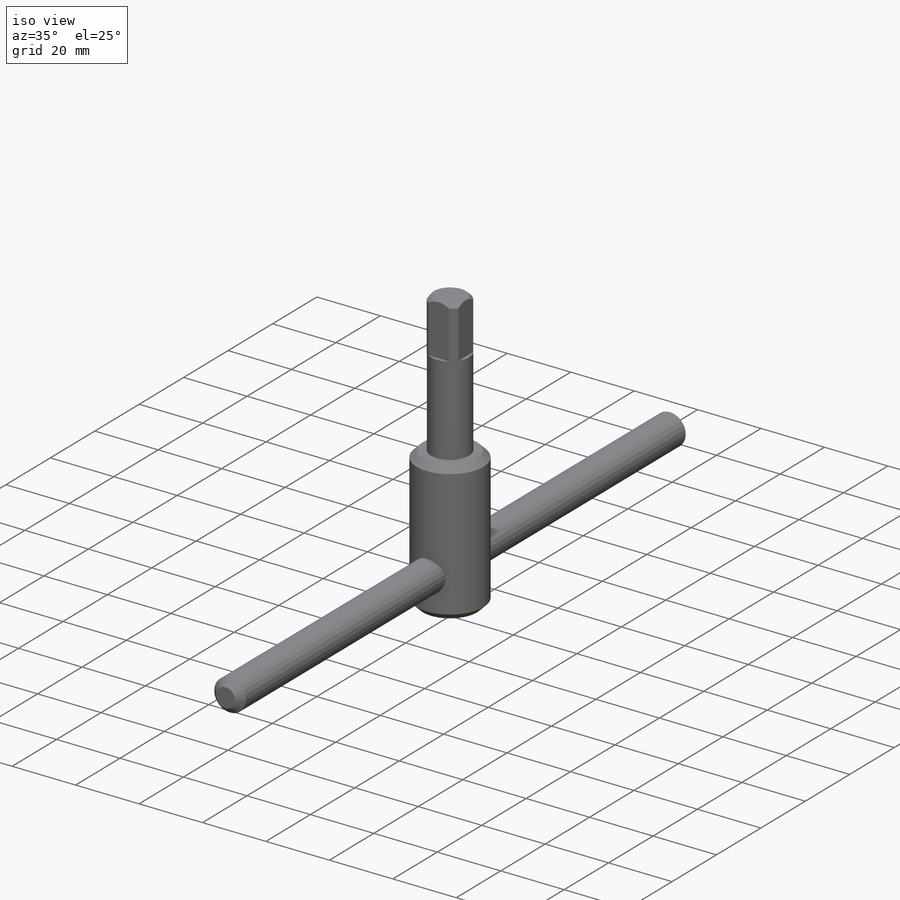
[diagram: iso view]
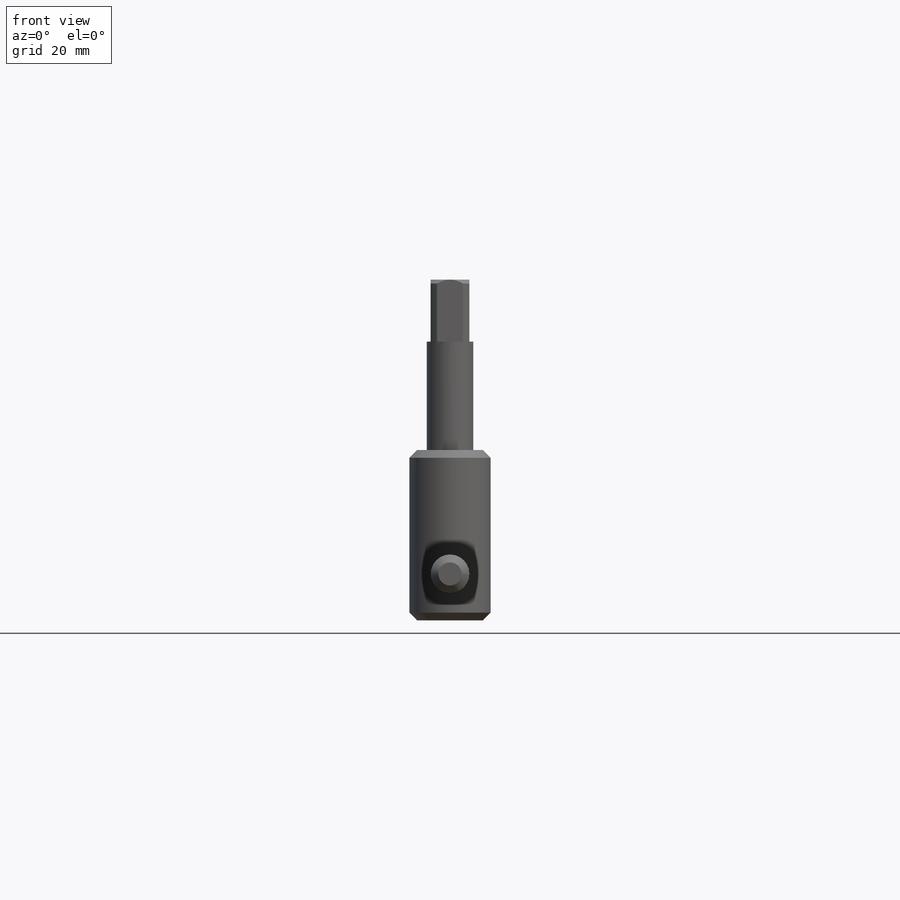
[diagram: front view]
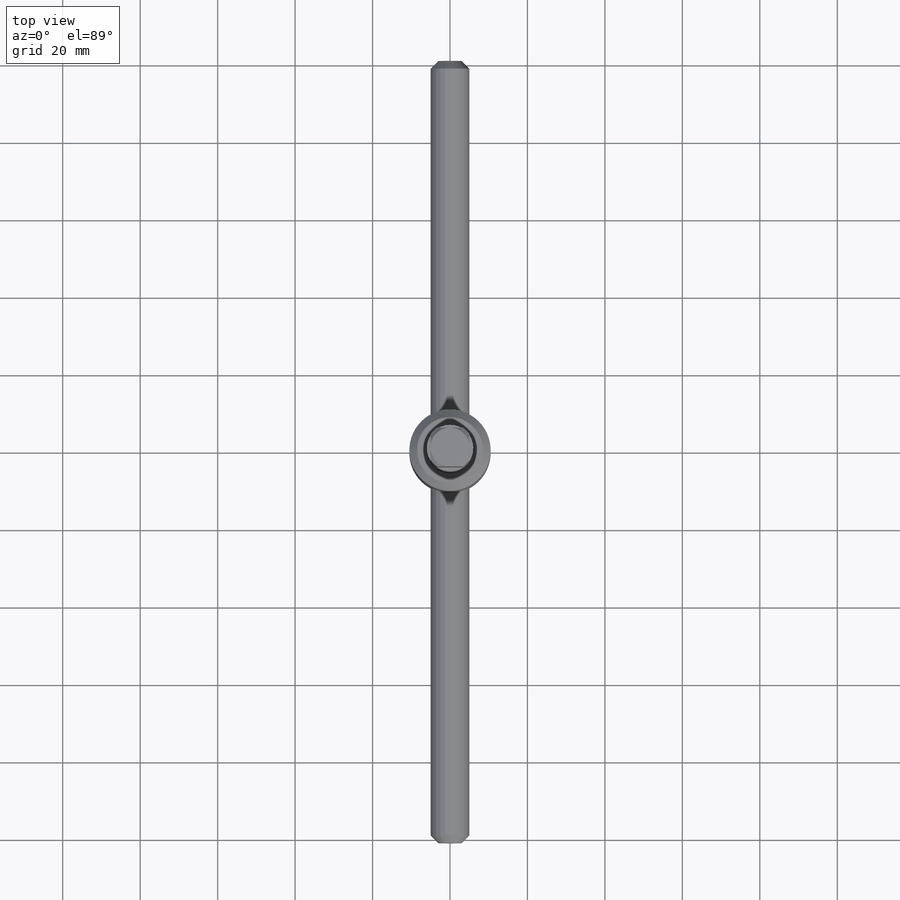
[diagram: top view]
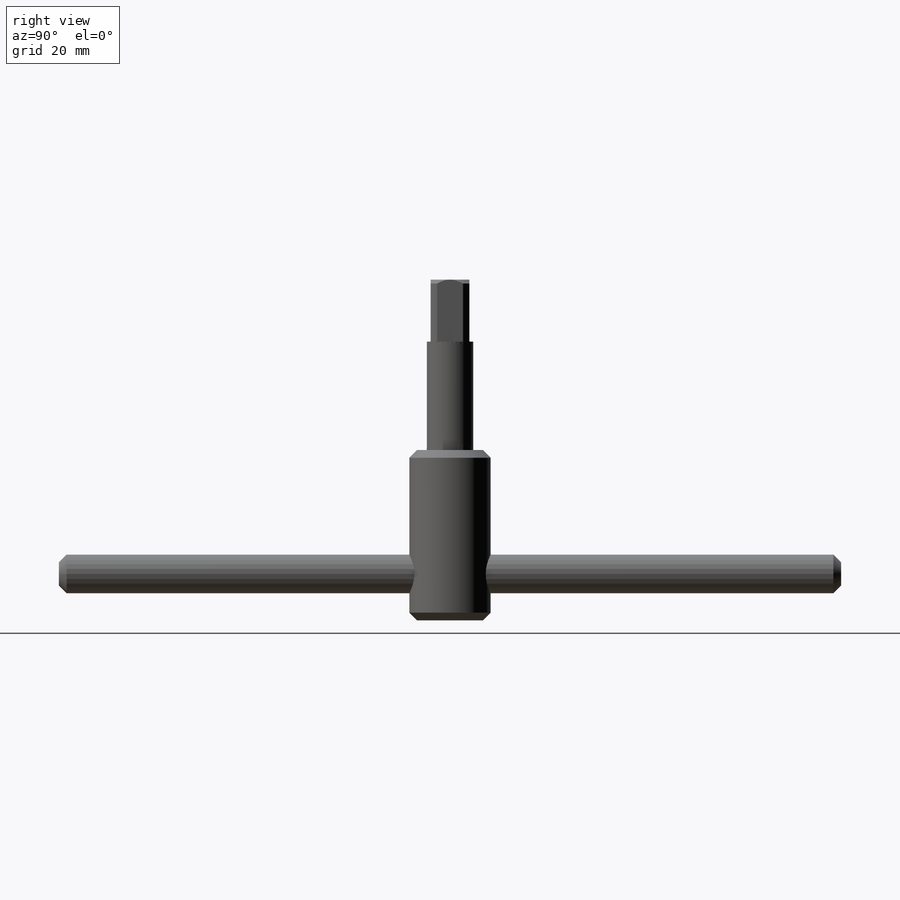
[diagram: right view]
SOLIDWORKS PART (.sldprt)
format: sldprt  version: not decoded by parser v0  size: 273,408 bytes
history: native  units: mm
features: sketch x4, extrude x3, chamfer x3, material x1, cut_extrude x1 (+16 scaffold rows collapsed)
feature tree (28):
  scaffold x16  (default folders/planes/origin — collapsed)
  material  "Material <not specified>"
  sketch  "Sketch1"  dims[D1=21.0mm]
  extrude  "Extrude1"  Depth=44mm
  sketch  "Sketch2"  dims[D1=12.0mm]
  extrude  "Extrude2"  Depth=44mm
  sketch  "Sketch3"  dims[D1=5.0mm D2=5.0mm]
  cut_extrude  "Extrude3"  Depth=16mm
  chamfer  "Chamfer1"  Distance=2mm Angle=45deg
  chamfer  "Chamfer2"  Distance=1mm Angle=45deg
  sketch  "Sketch5"  dims[D1=10.0mm D2=12.0mm]
  extrude  "Extrude4"  Depth=202mm
  chamfer  "Chamfer3"  Distance=2mm Angle=45deg
decode coverage: 11 of 11 modeling features carry decoded parameters
note: suppression state not decoded; provenance and decode notes live in map.json
